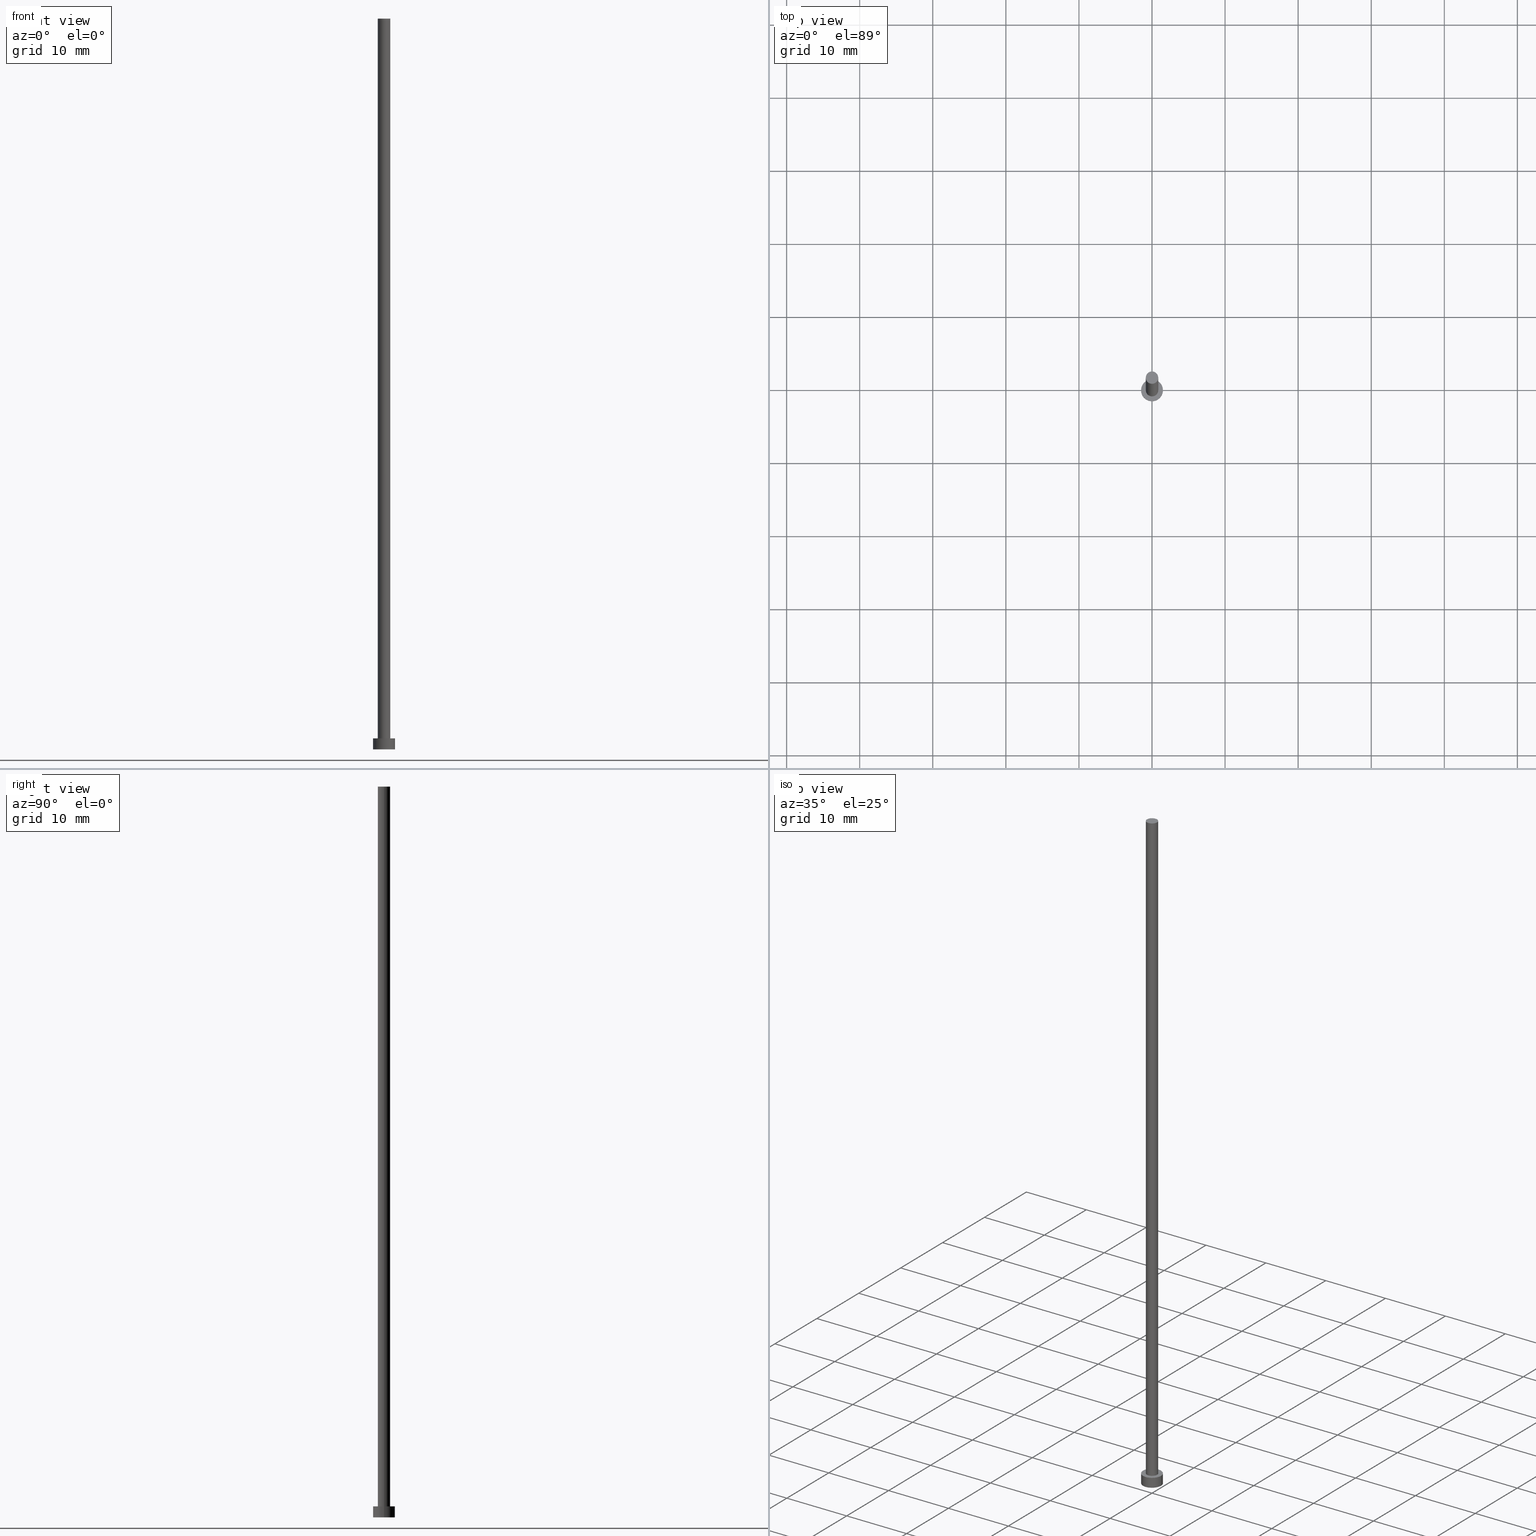
[diagram: canonical four-view strip — front | top / right | iso, engineering-drawing reading convention]
A machine part, canonical four-view strip (front | top / right | iso — engineering-drawing reading convention). The complete STEP part file that produces these views, byte-faithful:
ISO-10303-21;
HEADER;
FILE_DESCRIPTION (( 'STEP AP203' ),
    '1' );
FILE_NAME ('496d.STEP',
    '2023-02-13T14:58:09',
    ( '' ),
    ( '' ),
    'SwSTEP 2.0',
    'SolidWorks 2019',
    '' );
FILE_SCHEMA (( 'CONFIG_CONTROL_DESIGN' ));
ENDSEC;

DATA;
#1 = CARTESIAN_POINT ( 'NONE',  ( 0.000000000000000000, 0.000000000000000000, 100.0000000000000000 ) ) ;
#2 = ADVANCED_FACE ( 'NONE', ( #21 ), #54, .T. ) ;
#3 = PERSON_AND_ORGANIZATION ( #102, #66 ) ;
#4 = APPLICATION_PROTOCOL_DEFINITION ( 'international standard', 'config_control_design', 1994, #41 ) ;
#5 = APPROVAL_ROLE ( '' ) ;
#6 = ADVANCED_FACE ( 'NONE', ( #36 ), #117, .T. ) ;
#7 = DATE_AND_TIME ( #180, #152 ) ;
#8 = DATE_AND_TIME ( #233, #11 ) ;
#9 = AXIS2_PLACEMENT_3D ( 'NONE', #212, #116, #179 ) ;
#10 = DATE_TIME_ROLE ( 'classification_date' ) ;
#11 = LOCAL_TIME ( 15, 58, 9.000000000000000000, #82 ) ;
#12 = DIRECTION ( 'NONE',  ( 0.000000000000000000, 0.000000000000000000, 1.000000000000000000 ) ) ;
#13 = CARTESIAN_POINT ( 'NONE',  ( 0.000000000000000000, 0.000000000000000000, 100.0000000000000000 ) ) ;
#14 =( NAMED_UNIT ( * ) SI_UNIT ( $, .STERADIAN. ) SOLID_ANGLE_UNIT ( ) );
#15 = ADVANCED_FACE ( 'NONE', ( #135 ), #190, .T. ) ;
#16 = MECHANICAL_CONTEXT ( 'NONE', #41, 'mechanical' ) ;
#17 = DIRECTION ( 'NONE',  ( 1.000000000000000000, 0.000000000000000000, 0.000000000000000000 ) ) ;
#18 = DIRECTION ( 'NONE',  ( -0.000000000000000000, -0.000000000000000000, -1.000000000000000000 ) ) ;
#19 = ORIENTED_EDGE ( 'NONE', *, *, #241, .T. ) ;
#20 = DIRECTION ( 'NONE',  ( 1.000000000000000000, 0.000000000000000000, 0.000000000000000000 ) ) ;
#21 = FACE_OUTER_BOUND ( 'NONE', #112, .T. ) ;
#22 = COORDINATED_UNIVERSAL_TIME_OFFSET ( 1, 0, .AHEAD. ) ;
#23 = APPLICATION_CONTEXT ( 'configuration controlled 3d designs of mechanical parts and assemblies' ) ;
#24 = APPROVAL_STATUS ( 'not_yet_approved' ) ;
#25 = PERSON_AND_ORGANIZATION_ROLE ( 'creator' ) ;
#26 = EDGE_CURVE ( 'NONE', #234, #121, #207, .T. ) ;
#27 = CC_DESIGN_DATE_AND_TIME_ASSIGNMENT ( #7, #10, ( #245 ) ) ;
#28 = APPROVAL_PERSON_ORGANIZATION ( #45, #163, #109 ) ;
#29 = ORIENTED_EDGE ( 'NONE', *, *, #241, .F. ) ;
#30 = EDGE_CURVE ( 'NONE', #133, #138, #76, .T. ) ;
#31 = CC_DESIGN_PERSON_AND_ORGANIZATION_ASSIGNMENT ( #206, #25, ( #85 ) ) ;
#32 = FACE_OUTER_BOUND ( 'NONE', #119, .T. ) ;
#33 = DIRECTION ( 'NONE',  ( 0.000000000000000000, 0.000000000000000000, 1.000000000000000000 ) ) ;
#34 = DIRECTION ( 'NONE',  ( 0.000000000000000000, 0.000000000000000000, 1.000000000000000000 ) ) ;
#35 = DIRECTION ( 'NONE',  ( 0.000000000000000000, 0.000000000000000000, 1.000000000000000000 ) ) ;
#36 = FACE_OUTER_BOUND ( 'NONE', #38, .T. ) ;
#37 = DIRECTION ( 'NONE',  ( -1.000000000000000000, 0.000000000000000000, 0.000000000000000000 ) ) ;
#38 = EDGE_LOOP ( 'NONE', ( #29, #171, #100, #155 ) ) ;
#39 = APPLICATION_PROTOCOL_DEFINITION ( 'international standard', 'config_control_design', 1994, #23 ) ;
#40 = DIRECTION ( 'NONE',  ( -0.000000000000000000, -0.000000000000000000, -1.000000000000000000 ) ) ;
#41 = APPLICATION_CONTEXT ( 'configuration controlled 3d designs of mechanical parts and assemblies' ) ;
#42 = CARTESIAN_POINT ( 'NONE',  ( 0.000000000000000000, 0.000000000000000000, 1.500000000000000000 ) ) ;
#43 = APPROVAL ( #120, 'NEUR�EN�' ) ;
#44 = DATE_AND_TIME ( #254, #214 ) ;
#45 = PERSON_AND_ORGANIZATION ( #102, #66 ) ;
#46 = AXIS2_PLACEMENT_3D ( 'NONE', #49, #12, #215 ) ;
#47 = DIRECTION ( 'NONE',  ( 1.000000000000000000, 0.000000000000000000, -0.000000000000000000 ) ) ;
#48 = ORIENTED_EDGE ( 'NONE', *, *, #75, .F. ) ;
#49 = CARTESIAN_POINT ( 'NONE',  ( 0.000000000000000000, 0.000000000000000000, 1.500000000000000000 ) ) ;
#50 = APPROVAL_ROLE ( '' ) ;
#51 = VERTEX_POINT ( 'NONE', #156 ) ;
#52 = LOCAL_TIME ( 15, 58, 9.000000000000000000, #22 ) ;
#53 = DIRECTION ( 'NONE',  ( 0.000000000000000000, 0.000000000000000000, 1.000000000000000000 ) ) ;
#54 = CYLINDRICAL_SURFACE ( 'NONE', #167, 0.8499999999999999778 ) ;
#55 = ORIENTED_EDGE ( 'NONE', *, *, #58, .F. ) ;
#56 = CARTESIAN_POINT ( 'NONE',  ( 0.8499999999999999778, 1.040949779275250140E-16, 100.0000000000000000 ) ) ;
#57 = CALENDAR_DATE ( 2023, 13, 2 ) ;
#58 = EDGE_CURVE ( 'NONE', #125, #133, #174, .T. ) ;
#59 = AXIS2_PLACEMENT_3D ( 'NONE', #196, #18, #96 ) ;
#60 = AXIS2_PLACEMENT_3D ( 'NONE', #237, #235, #37 ) ;
#61 = APPROVAL_DATE_TIME ( #202, #43 ) ;
#62 = APPROVAL_PERSON_ORGANIZATION ( #203, #148, #5 ) ;
#63 = CC_DESIGN_PERSON_AND_ORGANIZATION_ASSIGNMENT ( #111, #227, ( #245 ) ) ;
#64 = VECTOR ( 'NONE', #72, 1000.000000000000000 ) ;
#65 = VECTOR ( 'NONE', #188, 1000.000000000000000 ) ;
#66 = ORGANIZATION ( 'NEUR�EN�', 'NEUR�EN�', '' ) ;
#67 = EDGE_CURVE ( 'NONE', #121, #99, #169, .T. ) ;
#68 = CC_DESIGN_SECURITY_CLASSIFICATION ( #245, ( #85 ) ) ;
#69 = EDGE_LOOP ( 'NONE', ( #55, #255, #185, #74 ) ) ;
#70 = CARTESIAN_POINT ( 'NONE',  ( 0.8499999999999999778, 1.040949779275250140E-16, 100.0000000000000000 ) ) ;
#71 = DIRECTION ( 'NONE',  ( 1.000000000000000000, 0.000000000000000000, 0.000000000000000000 ) ) ;
#72 = DIRECTION ( 'NONE',  ( -0.000000000000000000, -0.000000000000000000, -1.000000000000000000 ) ) ;
#73 = LINE ( 'NONE', #164, #65 ) ;
#74 = ORIENTED_EDGE ( 'NONE', *, *, #141, .T. ) ;
#75 = EDGE_CURVE ( 'NONE', #99, #51, #201, .T. ) ;
#76 = CIRCLE ( 'NONE', #225, 0.8499999999999999778 ) ;
#77 = ORIENTED_EDGE ( 'NONE', *, *, #252, .T. ) ;
#78 = DIRECTION ( 'NONE',  ( -1.000000000000000000, 0.000000000000000000, 0.000000000000000000 ) ) ;
#79 = FACE_OUTER_BOUND ( 'NONE', #69, .T. ) ;
#80 = COORDINATED_UNIVERSAL_TIME_OFFSET ( 1, 0, .AHEAD. ) ;
#81 = DIRECTION ( 'NONE',  ( 0.000000000000000000, 0.000000000000000000, 1.000000000000000000 ) ) ;
#82 = COORDINATED_UNIVERSAL_TIME_OFFSET ( 1, 0, .AHEAD. ) ;
#83 = AXIS2_PLACEMENT_3D ( 'NONE', #217, #35, #194 ) ;
#84 = PERSON_AND_ORGANIZATION_ROLE ( 'design_supplier' ) ;
#85 = PRODUCT_DEFINITION_FORMATION_WITH_SPECIFIED_SOURCE ( 'LIBOVOLN�', '', #146, .NOT_KNOWN. ) ;
#86 = CC_DESIGN_PERSON_AND_ORGANIZATION_ASSIGNMENT ( #173, #223, ( #146 ) ) ;
#87 = DIRECTION ( 'NONE',  ( 1.000000000000000000, 0.000000000000000000, 0.000000000000000000 ) ) ;
#88 = AXIS2_PLACEMENT_3D ( 'NONE', #108, #162, #71 ) ;
#89 = FACE_BOUND ( 'NONE', #244, .T. ) ;
#90 = LOCAL_TIME ( 15, 58, 9.000000000000000000, #181 ) ;
#91 = CARTESIAN_POINT ( 'NONE',  ( 1.500000000000000222, 1.836970198721030181E-16, 1.500000000000000000 ) ) ;
#92 = DIRECTION ( 'NONE',  ( 0.000000000000000000, 0.000000000000000000, 1.000000000000000000 ) ) ;
#93 = SHAPE_DEFINITION_REPRESENTATION ( #178, #147 ) ;
#94 = CARTESIAN_POINT ( 'NONE',  ( 0.000000000000000000, 0.000000000000000000, 100.0000000000000000 ) ) ;
#95 = AXIS2_PLACEMENT_3D ( 'NONE', #246, #33, #17 ) ;
#96 = DIRECTION ( 'NONE',  ( -1.000000000000000000, 0.000000000000000000, 0.000000000000000000 ) ) ;
#97 = CARTESIAN_POINT ( 'NONE',  ( -0.8499999999999999778, 0.000000000000000000, 100.0000000000000000 ) ) ;
#98 = PERSON_AND_ORGANIZATION ( #102, #66 ) ;
#99 = VERTEX_POINT ( 'NONE', #115 ) ;
#100 = ORIENTED_EDGE ( 'NONE', *, *, #67, .T. ) ;
#101 = ORIENTED_EDGE ( 'NONE', *, *, #141, .F. ) ;
#102 = PERSON ( 'NEUR�EN�', 'NEUR�EN�', 'NEUR�EN�', ('NEUR�EN�'), ('NEUR�EN�'), ('NEUR�EN�') ) ;
#103 = DIRECTION ( 'NONE',  ( -0.000000000000000000, -0.000000000000000000, -1.000000000000000000 ) ) ;
#104 = ADVANCED_FACE ( 'NONE', ( #89, #129 ), #184, .T. ) ;
#105 = CARTESIAN_POINT ( 'NONE',  ( 0.000000000000000000, 0.000000000000000000, 1.500000000000000000 ) ) ;
#106 = DIRECTION ( 'NONE',  ( 1.000000000000000000, 0.000000000000000000, 0.000000000000000000 ) ) ;
#107 = CARTESIAN_POINT ( 'NONE',  ( 0.000000000000000000, 0.000000000000000000, 1.500000000000000000 ) ) ;
#108 = CARTESIAN_POINT ( 'NONE',  ( 0.000000000000000000, 0.000000000000000000, 0.000000000000000000 ) ) ;
#109 = APPROVAL_ROLE ( '' ) ;
#110 = EDGE_CURVE ( 'NONE', #125, #221, #150, .T. ) ;
#111 = PERSON_AND_ORGANIZATION ( #102, #66 ) ;
#112 = EDGE_LOOP ( 'NONE', ( #126, #204, #128, #176 ) ) ;
#113 = ORIENTED_EDGE ( 'NONE', *, *, #183, .T. ) ;
#114 = AXIS2_PLACEMENT_3D ( 'NONE', #42, #81, #123 ) ;
#115 = CARTESIAN_POINT ( 'NONE',  ( -1.500000000000000222, 0.000000000000000000, 0.000000000000000000 ) ) ;
#116 = DIRECTION ( 'NONE',  ( 0.000000000000000000, 0.000000000000000000, 1.000000000000000000 ) ) ;
#117 = CYLINDRICAL_SURFACE ( 'NONE', #59, 1.500000000000000222 ) ;
#118 = DIRECTION ( 'NONE',  ( -0.000000000000000000, -0.000000000000000000, -1.000000000000000000 ) ) ;
#119 = EDGE_LOOP ( 'NONE', ( #48, #200 ) ) ;
#120 = APPROVAL_STATUS ( 'not_yet_approved' ) ;
#121 = VERTEX_POINT ( 'NONE', #187 ) ;
#122 = DESIGN_CONTEXT ( 'detailed design', #23, 'design' ) ;
#123 = DIRECTION ( 'NONE',  ( 1.000000000000000000, 0.000000000000000000, 0.000000000000000000 ) ) ;
#124 = DATE_TIME_ROLE ( 'creation_date' ) ;
#125 = VERTEX_POINT ( 'NONE', #70 ) ;
#126 = ORIENTED_EDGE ( 'NONE', *, *, #110, .F. ) ;
#127 = CC_DESIGN_PERSON_AND_ORGANIZATION_ASSIGNMENT ( #98, #170, ( #161 ) ) ;
#128 = ORIENTED_EDGE ( 'NONE', *, *, #30, .T. ) ;
#129 = FACE_OUTER_BOUND ( 'NONE', #251, .T. ) ;
#130 = ORIENTED_EDGE ( 'NONE', *, *, #30, .F. ) ;
#131 = CARTESIAN_POINT ( 'NONE',  ( 0.000000000000000000, 0.000000000000000000, 0.000000000000000000 ) ) ;
#132 = CIRCLE ( 'NONE', #114, 1.500000000000000222 ) ;
#133 = VERTEX_POINT ( 'NONE', #229 ) ;
#134 = EDGE_CURVE ( 'NONE', #221, #125, #192, .T. ) ;
#135 = FACE_OUTER_BOUND ( 'NONE', #172, .T. ) ;
#136 = UNCERTAINTY_MEASURE_WITH_UNIT (LENGTH_MEASURE( 1.000000000000000082E-05 ), #166, 'distance_accuracy_value', 'NONE');
#137 = CYLINDRICAL_SURFACE ( 'NONE', #60, 0.8499999999999999778 ) ;
#138 = VERTEX_POINT ( 'NONE', #247 ) ;
#139 = ORIENTED_EDGE ( 'NONE', *, *, #26, .F. ) ;
#140 = ORIENTED_EDGE ( 'NONE', *, *, #26, .T. ) ;
#141 = EDGE_CURVE ( 'NONE', #138, #133, #228, .T. ) ;
#142 = VECTOR ( 'NONE', #103, 1000.000000000000000 ) ;
#143 = AXIS2_PLACEMENT_3D ( 'NONE', #105, #222, #20 ) ;
#144 = APPROVAL_DATE_TIME ( #8, #148 ) ;
#145 = APPROVAL_PERSON_ORGANIZATION ( #3, #43, #50 ) ;
#146 = PRODUCT ( '496d', '496d', '', ( #16 ) ) ;
#147 = ADVANCED_BREP_SHAPE_REPRESENTATION ( '496d', ( #242, #88 ), #219 ) ;
#148 = APPROVAL ( #24, 'NEUR�EN�' ) ;
#149 = ORIENTED_EDGE ( 'NONE', *, *, #67, .F. ) ;
#150 = CIRCLE ( 'NONE', #95, 0.8499999999999999778 ) ;
#151 = CALENDAR_DATE ( 2023, 13, 2 ) ;
#152 = LOCAL_TIME ( 15, 58, 9.000000000000000000, #239 ) ;
#153 = CLOSED_SHELL ( 'NONE', ( #2, #220, #6, #104, #232, #182, #15 ) ) ;
#154 = ORIENTED_EDGE ( 'NONE', *, *, #134, .T. ) ;
#155 = ORIENTED_EDGE ( 'NONE', *, *, #75, .T. ) ;
#156 = CARTESIAN_POINT ( 'NONE',  ( 1.500000000000000222, 1.836970198721030181E-16, 0.000000000000000000 ) ) ;
#157 = CC_DESIGN_PERSON_AND_ORGANIZATION_ASSIGNMENT ( #243, #84, ( #85 ) ) ;
#158 = APPROVAL_STATUS ( 'not_yet_approved' ) ;
#159 = SECURITY_CLASSIFICATION_LEVEL ( 'unclassified' ) ;
#160 = AXIS2_PLACEMENT_3D ( 'NONE', #94, #230, #47 ) ;
#161 = PRODUCT_DEFINITION ( 'NEZN�M�', '', #85, #122 ) ;
#162 = DIRECTION ( 'NONE',  ( 0.000000000000000000, 0.000000000000000000, 1.000000000000000000 ) ) ;
#163 = APPROVAL ( #158, 'NEUR�EN�' ) ;
#164 = CARTESIAN_POINT ( 'NONE',  ( 1.500000000000000222, 1.836970198721030181E-16, 1.500000000000000000 ) ) ;
#165 = DIRECTION ( 'NONE',  ( 1.000000000000000000, 0.000000000000000000, 0.000000000000000000 ) ) ;
#166 =( LENGTH_UNIT ( ) NAMED_UNIT ( * ) SI_UNIT ( .MILLI., .METRE. ) );
#167 = AXIS2_PLACEMENT_3D ( 'NONE', #1, #218, #78 ) ;
#168 = AXIS2_PLACEMENT_3D ( 'NONE', #210, #34, #87 ) ;
#169 = LINE ( 'NONE', #189, #64 ) ;
#170 = PERSON_AND_ORGANIZATION_ROLE ( 'creator' ) ;
#171 = ORIENTED_EDGE ( 'NONE', *, *, #183, .F. ) ;
#172 = EDGE_LOOP ( 'NONE', ( #154, #209 ) ) ;
#173 = PERSON_AND_ORGANIZATION ( #102, #66 ) ;
#174 = LINE ( 'NONE', #56, #142 ) ;
#175 = EDGE_CURVE ( 'NONE', #221, #138, #198, .T. ) ;
#176 = ORIENTED_EDGE ( 'NONE', *, *, #175, .F. ) ;
#177 = CYLINDRICAL_SURFACE ( 'NONE', #208, 1.500000000000000222 ) ;
#178 = PRODUCT_DEFINITION_SHAPE ( 'NONE', 'NONE',  #161 ) ;
#179 = DIRECTION ( 'NONE',  ( 1.000000000000000000, 0.000000000000000000, 0.000000000000000000 ) ) ;
#180 = CALENDAR_DATE ( 2023, 13, 2 ) ;
#181 = COORDINATED_UNIVERSAL_TIME_OFFSET ( 1, 0, .AHEAD. ) ;
#182 = ADVANCED_FACE ( 'NONE', ( #79 ), #137, .T. ) ;
#183 = EDGE_CURVE ( 'NONE', #121, #234, #132, .T. ) ;
#184 = PLANE ( 'NONE',  #46 ) ;
#185 = ORIENTED_EDGE ( 'NONE', *, *, #175, .T. ) ;
#186 = DIRECTION ( 'NONE',  ( 1.000000000000000000, 0.000000000000000000, -0.000000000000000000 ) ) ;
#187 = CARTESIAN_POINT ( 'NONE',  ( -1.500000000000000222, 0.000000000000000000, 1.500000000000000000 ) ) ;
#188 = DIRECTION ( 'NONE',  ( -0.000000000000000000, -0.000000000000000000, -1.000000000000000000 ) ) ;
#189 = CARTESIAN_POINT ( 'NONE',  ( -1.500000000000000222, 0.000000000000000000, 1.500000000000000000 ) ) ;
#190 = PLANE ( 'NONE',  #160 ) ;
#191 = AXIS2_PLACEMENT_3D ( 'NONE', #13, #92, #165 ) ;
#192 = CIRCLE ( 'NONE', #191, 0.8499999999999999778 ) ;
#193 = APPROVAL_DATE_TIME ( #213, #163 ) ;
#194 = DIRECTION ( 'NONE',  ( 1.000000000000000000, 0.000000000000000000, 0.000000000000000000 ) ) ;
#195 = CC_DESIGN_APPROVAL ( #43, ( #161 ) ) ;
#196 = CARTESIAN_POINT ( 'NONE',  ( 0.000000000000000000, 0.000000000000000000, 1.500000000000000000 ) ) ;
#197 = CC_DESIGN_DATE_AND_TIME_ASSIGNMENT ( #44, #124, ( #161 ) ) ;
#198 = LINE ( 'NONE', #97, #249 ) ;
#199 = PRODUCT_RELATED_PRODUCT_CATEGORY ( 'detail', '', ( #146 ) ) ;
#200 = ORIENTED_EDGE ( 'NONE', *, *, #252, .F. ) ;
#201 = CIRCLE ( 'NONE', #83, 1.500000000000000222 ) ;
#202 = DATE_AND_TIME ( #57, #52 ) ;
#203 = PERSON_AND_ORGANIZATION ( #102, #66 ) ;
#204 = ORIENTED_EDGE ( 'NONE', *, *, #58, .T. ) ;
#205 = FACE_OUTER_BOUND ( 'NONE', #224, .T. ) ;
#206 = PERSON_AND_ORGANIZATION ( #102, #66 ) ;
#207 = CIRCLE ( 'NONE', #9, 1.500000000000000222 ) ;
#208 = AXIS2_PLACEMENT_3D ( 'NONE', #107, #118, #231 ) ;
#209 = ORIENTED_EDGE ( 'NONE', *, *, #110, .T. ) ;
#210 = CARTESIAN_POINT ( 'NONE',  ( 0.000000000000000000, 0.000000000000000000, 0.000000000000000000 ) ) ;
#211 = PLANE ( 'NONE',  #253 ) ;
#212 = CARTESIAN_POINT ( 'NONE',  ( 0.000000000000000000, 0.000000000000000000, 1.500000000000000000 ) ) ;
#213 = DATE_AND_TIME ( #151, #90 ) ;
#214 = LOCAL_TIME ( 15, 58, 9.000000000000000000, #80 ) ;
#215 = DIRECTION ( 'NONE',  ( 1.000000000000000000, 0.000000000000000000, -0.000000000000000000 ) ) ;
#216 = CARTESIAN_POINT ( 'NONE',  ( -0.8499999999999999778, 0.000000000000000000, 100.0000000000000000 ) ) ;
#217 = CARTESIAN_POINT ( 'NONE',  ( 0.000000000000000000, 0.000000000000000000, 0.000000000000000000 ) ) ;
#218 = DIRECTION ( 'NONE',  ( -0.000000000000000000, -0.000000000000000000, -1.000000000000000000 ) ) ;
#219 =( GEOMETRIC_REPRESENTATION_CONTEXT ( 3 ) GLOBAL_UNCERTAINTY_ASSIGNED_CONTEXT ( ( #136 ) ) GLOBAL_UNIT_ASSIGNED_CONTEXT ( ( #166, #248, #14 ) ) REPRESENTATION_CONTEXT ( 'NONE', 'WORKASPACE' ) );
#220 = ADVANCED_FACE ( 'NONE', ( #205 ), #177, .T. ) ;
#221 = VERTEX_POINT ( 'NONE', #216 ) ;
#222 = DIRECTION ( 'NONE',  ( 0.000000000000000000, 0.000000000000000000, 1.000000000000000000 ) ) ;
#223 = PERSON_AND_ORGANIZATION_ROLE ( 'design_owner' ) ;
#224 = EDGE_LOOP ( 'NONE', ( #139, #19, #77, #149 ) ) ;
#225 = AXIS2_PLACEMENT_3D ( 'NONE', #240, #53, #106 ) ;
#226 = CC_DESIGN_APPROVAL ( #163, ( #245 ) ) ;
#227 = PERSON_AND_ORGANIZATION_ROLE ( 'classification_officer' ) ;
#228 = CIRCLE ( 'NONE', #143, 0.8499999999999999778 ) ;
#229 = CARTESIAN_POINT ( 'NONE',  ( 0.8499999999999999778, 1.040949779275250140E-16, 1.500000000000000000 ) ) ;
#230 = DIRECTION ( 'NONE',  ( 0.000000000000000000, 0.000000000000000000, 1.000000000000000000 ) ) ;
#231 = DIRECTION ( 'NONE',  ( -1.000000000000000000, 0.000000000000000000, 0.000000000000000000 ) ) ;
#232 = ADVANCED_FACE ( 'NONE', ( #32 ), #211, .F. ) ;
#233 = CALENDAR_DATE ( 2023, 13, 2 ) ;
#234 = VERTEX_POINT ( 'NONE', #91 ) ;
#235 = DIRECTION ( 'NONE',  ( -0.000000000000000000, -0.000000000000000000, -1.000000000000000000 ) ) ;
#236 = CIRCLE ( 'NONE', #168, 1.500000000000000222 ) ;
#237 = CARTESIAN_POINT ( 'NONE',  ( 0.000000000000000000, 0.000000000000000000, 100.0000000000000000 ) ) ;
#238 = CC_DESIGN_APPROVAL ( #148, ( #85 ) ) ;
#239 = COORDINATED_UNIVERSAL_TIME_OFFSET ( 1, 0, .AHEAD. ) ;
#240 = CARTESIAN_POINT ( 'NONE',  ( 0.000000000000000000, 0.000000000000000000, 1.500000000000000000 ) ) ;
#241 = EDGE_CURVE ( 'NONE', #234, #51, #73, .T. ) ;
#242 = MANIFOLD_SOLID_BREP ( 'P�idat vysunut�m3', #153 ) ;
#243 = PERSON_AND_ORGANIZATION ( #102, #66 ) ;
#244 = EDGE_LOOP ( 'NONE', ( #101, #130 ) ) ;
#245 = SECURITY_CLASSIFICATION ( '', '', #159 ) ;
#246 = CARTESIAN_POINT ( 'NONE',  ( 0.000000000000000000, 0.000000000000000000, 100.0000000000000000 ) ) ;
#247 = CARTESIAN_POINT ( 'NONE',  ( -0.8499999999999999778, 0.000000000000000000, 1.500000000000000000 ) ) ;
#248 =( NAMED_UNIT ( * ) PLANE_ANGLE_UNIT ( ) SI_UNIT ( $, .RADIAN. ) );
#249 = VECTOR ( 'NONE', #40, 1000.000000000000000 ) ;
#250 = DIRECTION ( 'NONE',  ( 0.000000000000000000, 0.000000000000000000, 1.000000000000000000 ) ) ;
#251 = EDGE_LOOP ( 'NONE', ( #113, #140 ) ) ;
#252 = EDGE_CURVE ( 'NONE', #51, #99, #236, .T. ) ;
#253 = AXIS2_PLACEMENT_3D ( 'NONE', #131, #250, #186 ) ;
#254 = CALENDAR_DATE ( 2023, 13, 2 ) ;
#255 = ORIENTED_EDGE ( 'NONE', *, *, #134, .F. ) ;
ENDSEC;
END-ISO-10303-21;
